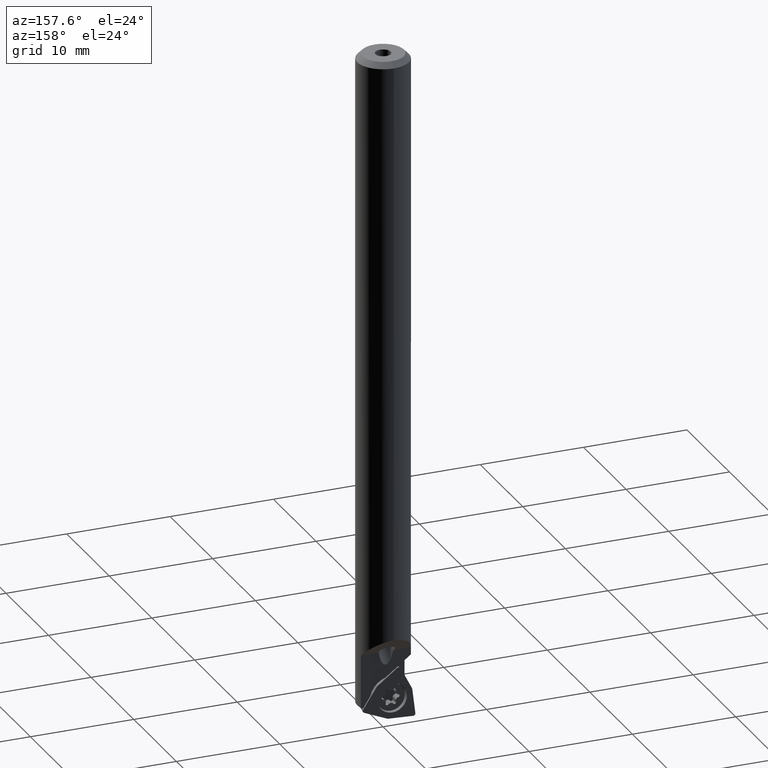
[diagram: clean part render]
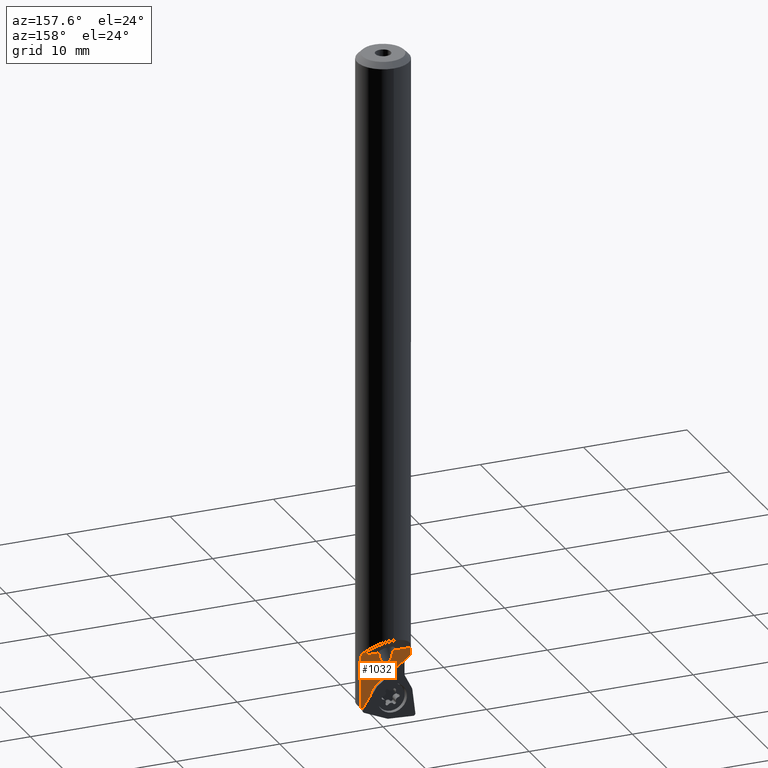
[diagram: same view with one face highlighted and labeled with its STEP entity id]
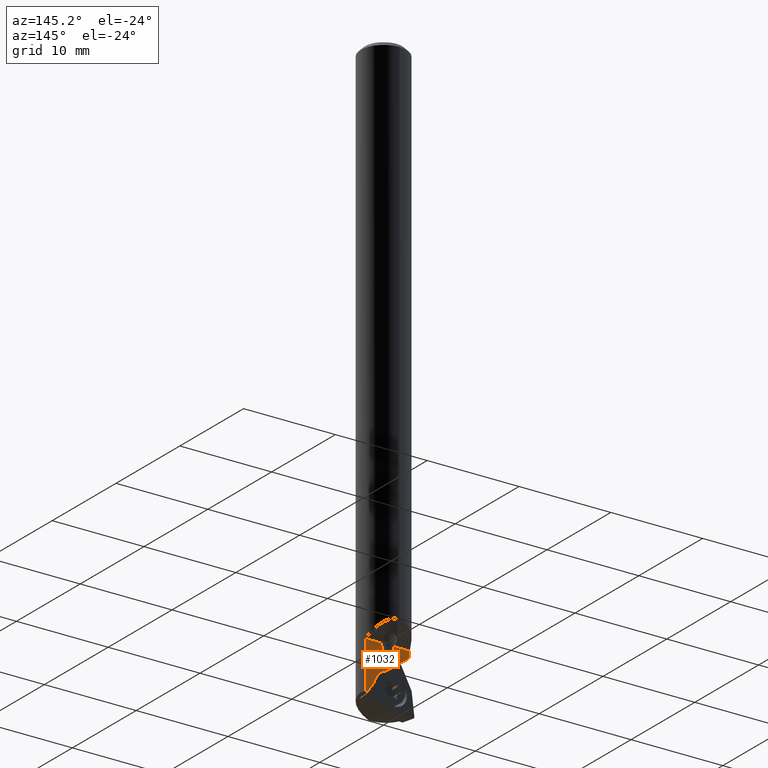
[diagram: same view with one face highlighted and labeled with its STEP entity id]
A machine part, auxiliary view. The second image highlights one B-rep face of the part: STEP entity #1032.
A second angle (auxiliary view) of the same face is appended — the face is thin or edge-on in the first view.
In plain terms, the highlighted planar face has unit normal (0, 1, 0).
Its self-contained STEP definition (entity closure, byte-faithful):
#612=EDGE_CURVE('NONE',#1000,#1522,#1657,.T.);
#630=EDGE_CURVE('NONE',#1076,#1500,#1678,.T.);
#682=VERTEX_POINT('NONE',#1740);
#690=EDGE_CURVE('NONE',#1500,#832,#1748,.T.);
#778=EDGE_CURVE('NONE',#952,#1000,#1845,.T.);
#832=VERTEX_POINT('NONE',#1904);
#922=EDGE_CURVE('NONE',#960,#952,#2005,.T.);
#938=EDGE_CURVE('NONE',#1522,#682,#2021,.T.);
#952=VERTEX_POINT('NONE',#2037);
#954=EDGE_CURVE('NONE',#1144,#1536,#2039,.T.);
#960=VERTEX_POINT('NONE',#2045);
#1000=VERTEX_POINT('NONE',#2088);
#1020=EDGE_CURVE('NONE',#682,#1536,#2114,.T.);
#1032=ADVANCED_FACE('NONE',(#2126),#2127,.T.);
#1076=VERTEX_POINT('NONE',#2175);
#1114=EDGE_CURVE('NONE',#832,#960,#2216,.T.);
#1144=VERTEX_POINT('NONE',#2247);
#1484=EDGE_CURVE('NONE',#1144,#1076,#2619,.T.);
#1500=VERTEX_POINT('NONE',#2639);
#1522=VERTEX_POINT('NONE',#2662);
#1536=VERTEX_POINT('NONE',#2677);
#1657=LINE('',#2817,#2818);
#1678=LINE('',#2843,#2844);
#1740=CARTESIAN_POINT('',(2.22450661321616,0.65,-63.5654993611171));
#1748=LINE('',#2963,#2964);
#1845=LINE('',#3115,#3116);
#1904=CARTESIAN_POINT('',(-0.695894664484659,0.65,-58.3554493858207));
#2005=(B_SPLINE_CURVE(3,(#3362,#3363,#3364,#3365),.UNSPECIFIED.,.F.,.F.)B_SPLINE_CURVE_WITH_KNOTS((4,4),(0.0,1.18863169063756),.UNSPECIFIED.)RATIONAL_B_SPLINE_CURVE((1.0,0.885687853122123,0.885687853122123,1.0))BOUNDED_CURVE()REPRESENTATION_ITEM('')GEOMETRIC_REPRESENTATION_ITEM()CURVE());
#2021=LINE('',#3396,#3397);
#2037=CARTESIAN_POINT('',(0.695894664484657,0.65,-58.3554493858207));
#2039=CIRCLE('',#3420,2.1);
#2045=CARTESIAN_POINT('',(0.0,0.65,-59.6109068266361));
#2088=CARTESIAN_POINT('',(2.41402154091466,0.65,-58.3554493858207));
#2114=LINE('',#3517,#3518);
#2126=FACE_OUTER_BOUND('',#3545,.T.);
#2127=PLANE('',#3546);
#2175=CARTESIAN_POINT('',(-2.41402154091465,0.65,-59.0391181989787));
#2216=(B_SPLINE_CURVE(3,(#3686,#3687,#3688,#3689),.UNSPECIFIED.,.F.,.F.)B_SPLINE_CURVE_WITH_KNOTS((4,4),(5.09455361654202,6.28318530717959),.UNSPECIFIED.)RATIONAL_B_SPLINE_CURVE((1.0,0.885687853122123,0.885687853122123,1.0))BOUNDED_CURVE()REPRESENTATION_ITEM('')GEOMETRIC_REPRESENTATION_ITEM()CURVE());
#2247=CARTESIAN_POINT('',(0.0417369181826254,0.65,-60.8896649319056));
#2619=LINE('',#4284,#4285);
#2639=CARTESIAN_POINT('',(-2.41402154091466,0.65,-58.3554493858207));
#2662=CARTESIAN_POINT('',(2.41402154091466,0.65,-63.4850550470133));
#2677=CARTESIAN_POINT('',(1.5077083408219,0.649999999999999,-62.4617268153344));
#2817=CARTESIAN_POINT('',(2.41402154091466,0.65,1.94423405547652));
#2818=VECTOR('',#4506,1000.0);
#2843=CARTESIAN_POINT('',(-2.41402154091466,0.65,1.94423405547652));
#2844=VECTOR('',#4532,1000.0);
#2963=CARTESIAN_POINT('',(-2.5,0.65,-58.3554493858207));
#2964=VECTOR('',#4622,1000.0);
#3115=CARTESIAN_POINT('',(-2.5,0.65,-58.3554493858207));
#3116=VECTOR('',#4754,1000.0);
#3362=CARTESIAN_POINT('',(0.0,0.65,-59.6109068266361));
#3363=CARTESIAN_POINT('',(0.316105747481394,0.65,-59.6109068266361));
#3364=CARTESIAN_POINT('',(0.578009405010237,0.65,-59.1384087426554));
#3365=CARTESIAN_POINT('',(0.695894664484657,0.65,-58.3554493858207));
#3396=CARTESIAN_POINT('',(-0.158931426337209,0.65,-64.5772087849035));
#3397=VECTOR('',#4972,1000.0);
#3420=AXIS2_PLACEMENT_3D('',#4991,#4992,#4993);
#3517=CARTESIAN_POINT('',(3.67753875693408,0.65,-65.8029726505248));
#3518=VECTOR('',#5091,1000.0);
#3545=EDGE_LOOP('',(#5100,#5101,#5102,#5103,#5104,#5105,#5106,#5107,#5108,#5109));
#3546=AXIS2_PLACEMENT_3D('',#5110,#5111,#5112);
#3686=CARTESIAN_POINT('',(-0.695894664484659,0.65,-58.3554493858207));
#3687=CARTESIAN_POINT('',(-0.578009405010237,0.65,-59.1384087426554));
#3688=CARTESIAN_POINT('',(-0.316105747481394,0.65,-59.6109068266361));
#3689=CARTESIAN_POINT('',(0.0,0.65,-59.6109068266361));
#4284=CARTESIAN_POINT('',(0.21226461107249,0.65,-61.0181667655375));
#4285=VECTOR('',#5650,1000.0);
#4506=DIRECTION('',(0.0,0.0,-1.0));
#4532=DIRECTION('',(0.0,-0.0,1.0));
#4622=DIRECTION('',(1.0,0.0,0.0));
#4754=DIRECTION('',(1.0,0.0,0.0));
#4972=DIRECTION('',(-0.920504853452441,0.0,-0.390731128489271));
#4991=CARTESIAN_POINT('',(-0.544734980000003,0.65,-62.90611));
#4992=DIRECTION('',(0.0,1.0,0.0));
#4993=DIRECTION('',(0.0,0.0,-1.0));
#5091=DIRECTION('',(-0.544639035015025,0.0,0.838670567945426));
#5100=ORIENTED_EDGE('',*,*,#690,.T.);
#5101=ORIENTED_EDGE('',*,*,#1114,.T.);
#5102=ORIENTED_EDGE('',*,*,#922,.T.);
#5103=ORIENTED_EDGE('',*,*,#778,.T.);
#5104=ORIENTED_EDGE('',*,*,#612,.T.);
#5105=ORIENTED_EDGE('',*,*,#938,.T.);
#5106=ORIENTED_EDGE('',*,*,#1020,.T.);
#5107=ORIENTED_EDGE('',*,*,#954,.F.);
#5108=ORIENTED_EDGE('',*,*,#1484,.T.);
#5109=ORIENTED_EDGE('',*,*,#630,.T.);
#5110=CARTESIAN_POINT('',(-6.04473498,0.65,-67.70611));
#5111=DIRECTION('',(0.0,1.0,0.0));
#5112=DIRECTION('',(0.0,0.0,-1.0));
#5650=DIRECTION('',(-0.798635510047292,0.0,0.60181502315205));